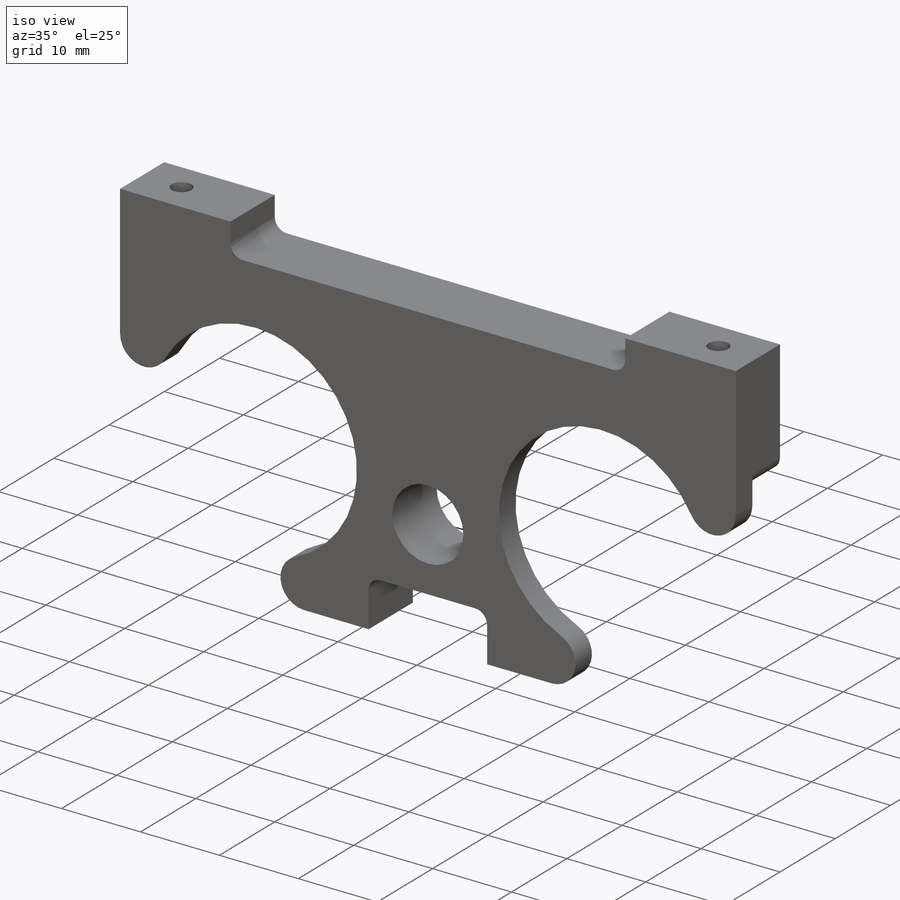
[diagram: iso view]
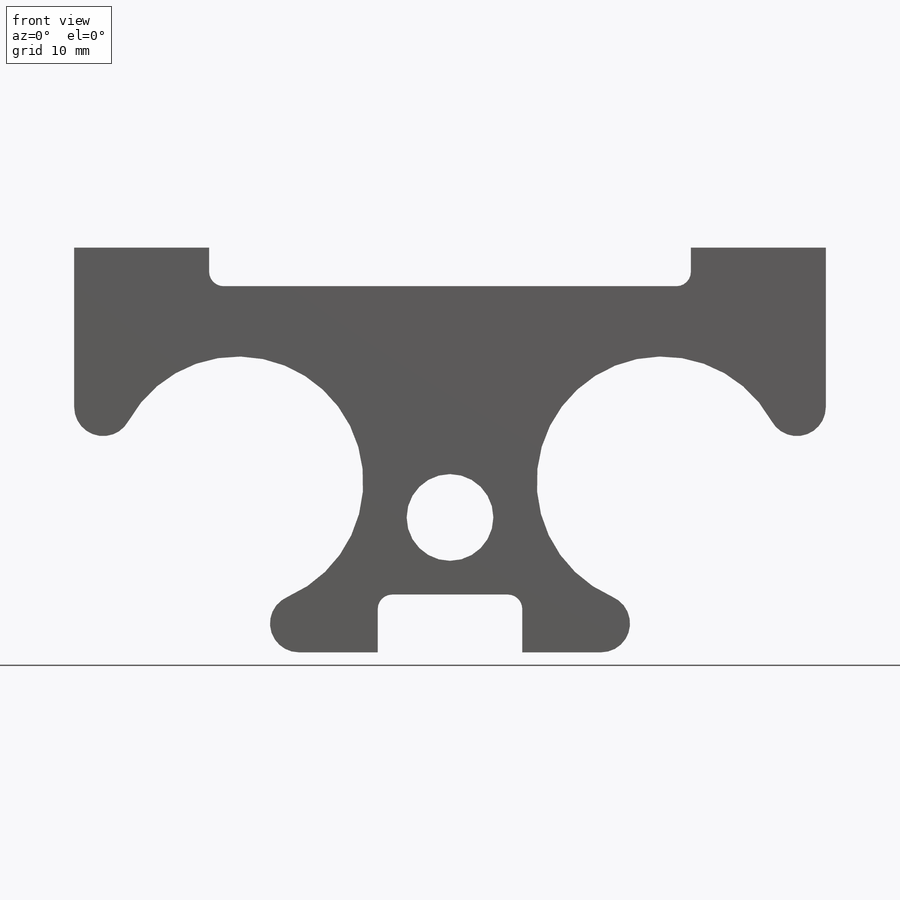
[diagram: front view]
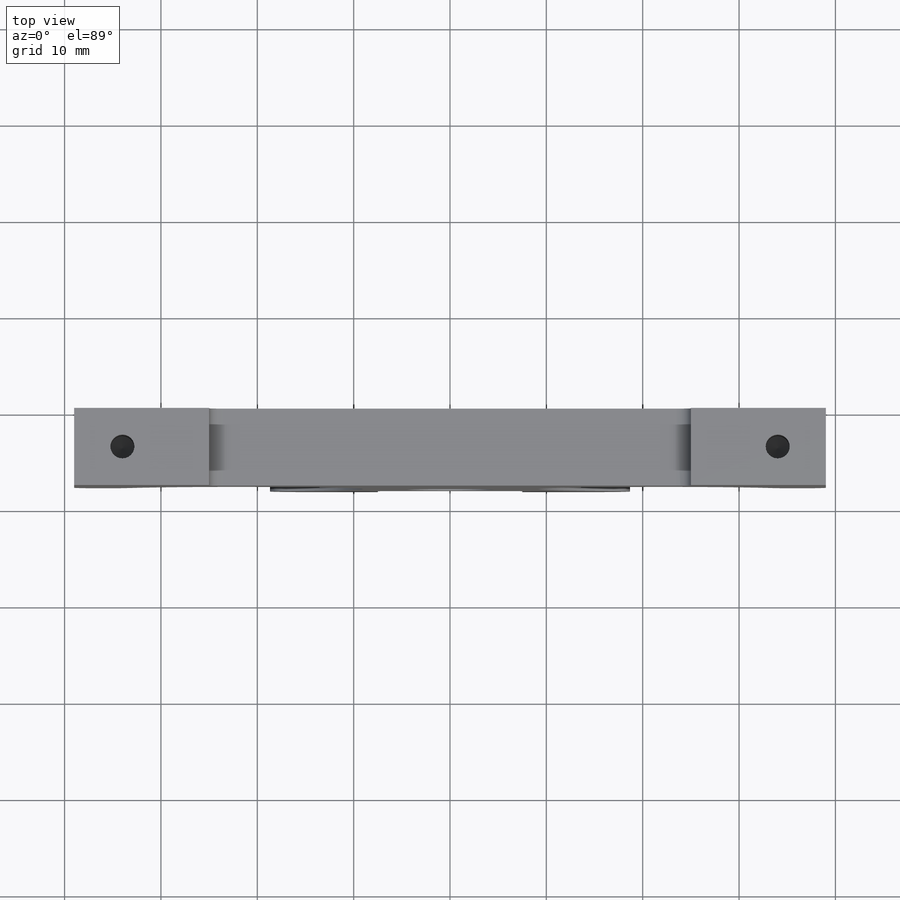
[diagram: top view]
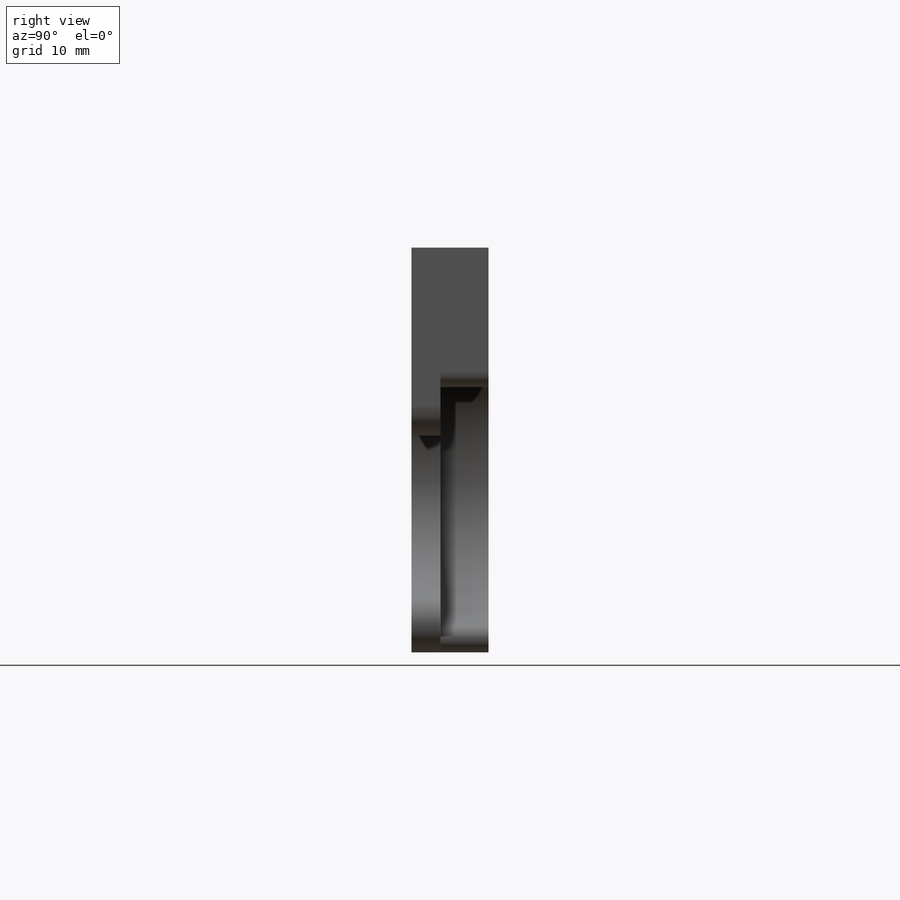
[diagram: right view]
SOLIDWORKS PART (.sldprt)
format: sldprt  version: not decoded by parser v0  size: 288,256 bytes
history: native  units: mm
features: sketch x6, cut_extrude x3, material x1, extrude x1, fillet x1, hole x1 (+11 scaffold rows collapsed)
feature tree (24):
  scaffold x11  (default folders/planes/origin — collapsed)
  material  "POM Acetal Copolymer"
  sketch  "Sketch1"  dims[D1=42.0mm D2=78.0mm]
  extrude  "Boss-Extrude1"  Depth=8mm
  sketch  "Sketch2"  dims[c1.D2=17.7mm c1.D5=1.5mm c1.D1=44.0mm c1.D3=17.7mm c1.D4=22.0mm c2.D3=17.7mm]
  cut_extrude  "Cut-Extrude2"  Depth=5mm
  sketch  "Sketch3"  dims[D2=9.0mm D1=14.0mm]
  cut_extrude  "Cut-Extrude3"  [1 undecoded]
  sketch  "Sketch4"  dims[D1=13.0mm D2=3.0mm D8=1.5mm D3=50.0mm D4=25.0mm D5=4.0mm D6=15.0mm D7=6.0mm]
  cut_extrude  "Cut-Extrude4"  [1 undecoded]
  fillet  "Fillet1"  Radius=1.5mm
  hole  "Tap Drill for M3 Tap1"  Diameter=2.5mm Depth=10mm
  sketch  "Sketch6"  dims[D1=4.0mm D2=5.0mm D3=5.0mm]
  sketch  "Sketch5"  dims[hole-wizard template sketch: 50 standard entries collapsed; hole parameters above]
decode coverage: 10 of 12 modeling features carry decoded parameters
note: ~ marks probable driven/reference dimensions
note: 2 parameter values undecoded
note: suppression state not decoded; provenance and decode notes live in map.json
